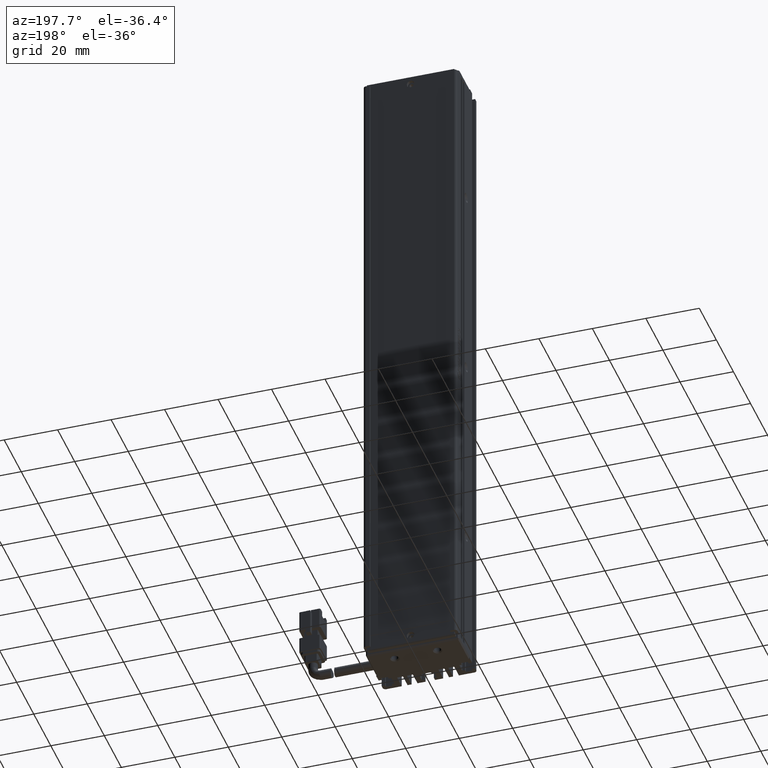
[diagram: clean part render]
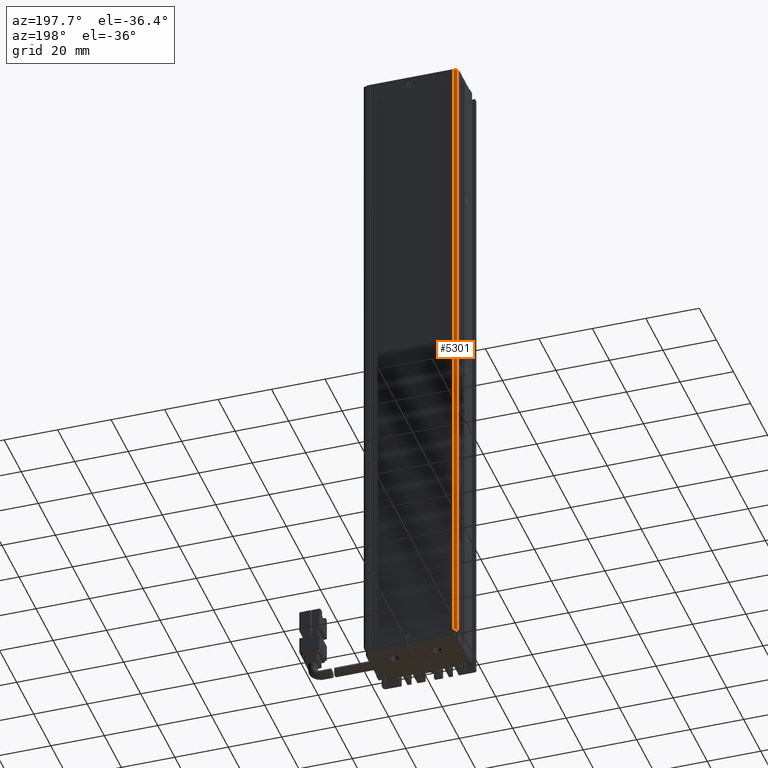
[diagram: same view with one face highlighted and labeled with its STEP entity id]
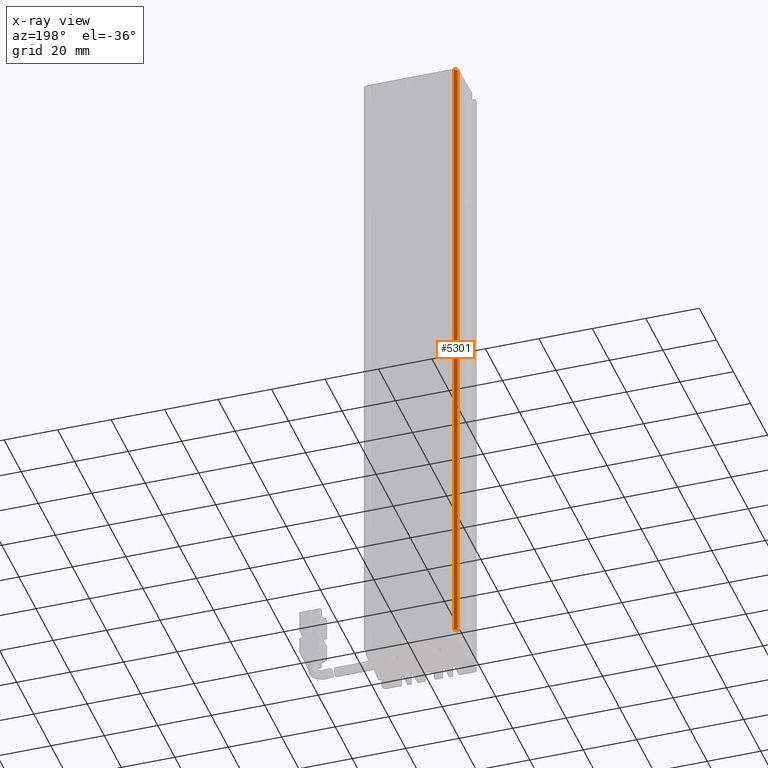
[diagram: x-ray of the same camera — body ghosted, the highlighted face saturated]
A machine part, auxiliary view. The second image highlights one B-rep face of the part: STEP entity #5301.
The next image is the same camera in x-ray: the body ghosted, the highlighted face saturated — about 0% of this face is hidden behind the body in this view.
In plain terms, the highlighted cylindrical surface (edge-blend (fillet) strip) has radius 1 mm, axis along (0, 0, -1).
Its self-contained STEP definition (entity closure, byte-faithful):
#4658 = CARTESIAN_POINT ( 'NONE',  ( 23.42537974683542500, 33.99073232304837700, 8.999999999999994700 ) ) ;
#4806 = DIRECTION ( 'NONE',  ( 0.0000000000000000000, 0.0000000000000000000, -1.000000000000000000 ) ) ;
#5301 = ADVANCED_FACE ( 'NONE', ( #40061 ), #58798, .T. ) ;
#6570 = CIRCLE ( 'NONE', #18856, 0.9999999999999974500 ) ;
#7324 = EDGE_CURVE ( 'NONE', #95101, #83340, #34491, .T. ) ;
#8701 = VECTOR ( 'NONE', #4806, 1000.000000000000000 ) ;
#9215 = AXIS2_PLACEMENT_3D ( 'NONE', #57294, #79774, #27860 ) ;
#15654 = LINE ( 'NONE', #34497, #8701 ) ;
#18856 = AXIS2_PLACEMENT_3D ( 'NONE', #57071, #62922, #25691 ) ;
#19915 = DIRECTION ( 'NONE',  ( -1.000000000000000000, 0.0000000000000000000, 0.0000000000000000000 ) ) ;
#20986 = ORIENTED_EDGE ( 'NONE', *, *, #32651, .T. ) ;
#25691 = DIRECTION ( 'NONE',  ( -1.000000000000000000, 0.0000000000000000000, 0.0000000000000000000 ) ) ;
#27520 = AXIS2_PLACEMENT_3D ( 'NONE', #93759, #65014, #19915 ) ;
#27860 = DIRECTION ( 'NONE',  ( -1.000000000000000000, 0.0000000000000000000, 0.0000000000000000000 ) ) ;
#30233 = CARTESIAN_POINT ( 'NONE',  ( 24.42537974683542500, 34.99073232304837000, -239.0000000000000000 ) ) ;
#32651 = EDGE_CURVE ( 'NONE', #95101, #94838, #66750, .T. ) ;
#34491 = LINE ( 'NONE', #46034, #91690 ) ;
#34497 = CARTESIAN_POINT ( 'NONE',  ( 24.42537974683542900, 34.99073232304837700, 10.99999999999999600 ) ) ;
#35326 = EDGE_CURVE ( 'NONE', #82938, #83340, #6570, .T. ) ;
#40061 = FACE_OUTER_BOUND ( 'NONE', #45206, .T. ) ;
#45206 = EDGE_LOOP ( 'NONE', ( #49233, #86273, #20986, #65834 ) ) ;
#46034 = CARTESIAN_POINT ( 'NONE',  ( 23.42537974683542500, 33.99073232304837700, 10.99999999999999600 ) ) ;
#49233 = ORIENTED_EDGE ( 'NONE', *, *, #35326, .T. ) ;
#53611 = DIRECTION ( 'NONE',  ( -0.0000000000000000000, -0.0000000000000000000, -1.000000000000000000 ) ) ;
#57071 = CARTESIAN_POINT ( 'NONE',  ( 24.42537974683542900, 33.99073232304837700, -239.0000000000000000 ) ) ;
#57294 = CARTESIAN_POINT ( 'NONE',  ( 24.42537974683542900, 33.99073232304837700, 8.999999999999994700 ) ) ;
#58798 = CYLINDRICAL_SURFACE ( 'NONE', #27520, 0.9999999999999974500 ) ;
#59915 = EDGE_CURVE ( 'NONE', #94838, #82938, #15654, .T. ) ;
#62922 = DIRECTION ( 'NONE',  ( -0.0000000000000000000, -0.0000000000000000000, 1.000000000000000000 ) ) ;
#65014 = DIRECTION ( 'NONE',  ( 0.0000000000000000000, 0.0000000000000000000, -1.000000000000000000 ) ) ;
#65834 = ORIENTED_EDGE ( 'NONE', *, *, #59915, .T. ) ;
#66411 = CARTESIAN_POINT ( 'NONE',  ( 23.42537974683542500, 33.99073232304837700, -239.0000000000000000 ) ) ;
#66750 = CIRCLE ( 'NONE', #9215, 0.9999999999999974500 ) ;
#68307 = CARTESIAN_POINT ( 'NONE',  ( 24.42537974683542500, 34.99073232304837000, 8.999999999999994700 ) ) ;
#79774 = DIRECTION ( 'NONE',  ( 0.0000000000000000000, 0.0000000000000000000, -1.000000000000000000 ) ) ;
#82938 = VERTEX_POINT ( 'NONE', #30233 ) ;
#83340 = VERTEX_POINT ( 'NONE', #66411 ) ;
#86273 = ORIENTED_EDGE ( 'NONE', *, *, #7324, .F. ) ;
#91690 = VECTOR ( 'NONE', #53611, 1000.000000000000000 ) ;
#93759 = CARTESIAN_POINT ( 'NONE',  ( 24.42537974683542900, 33.99073232304837700, 10.99999999999999600 ) ) ;
#94838 = VERTEX_POINT ( 'NONE', #68307 ) ;
#95101 = VERTEX_POINT ( 'NONE', #4658 ) ;